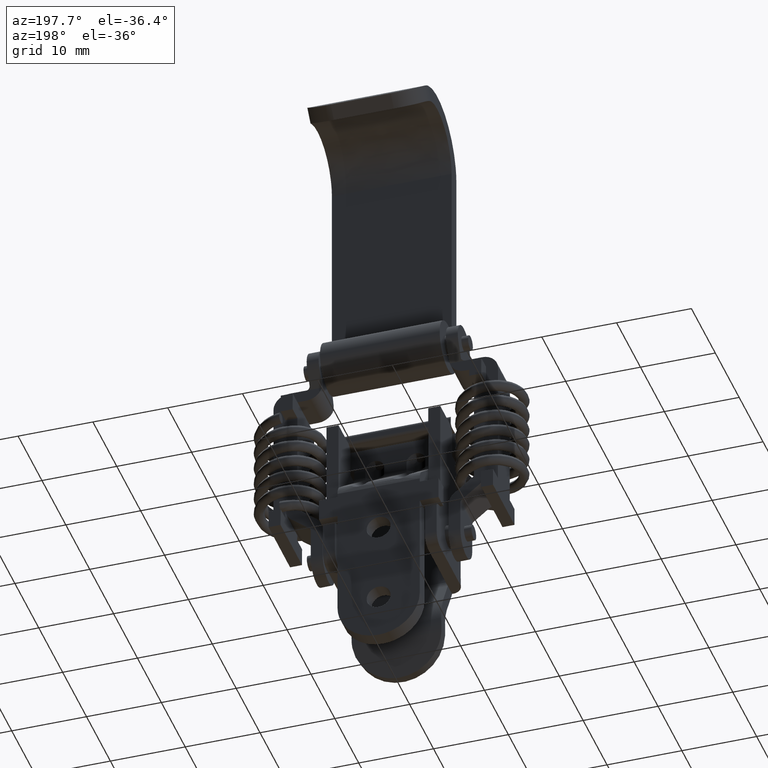
[diagram: clean part render]
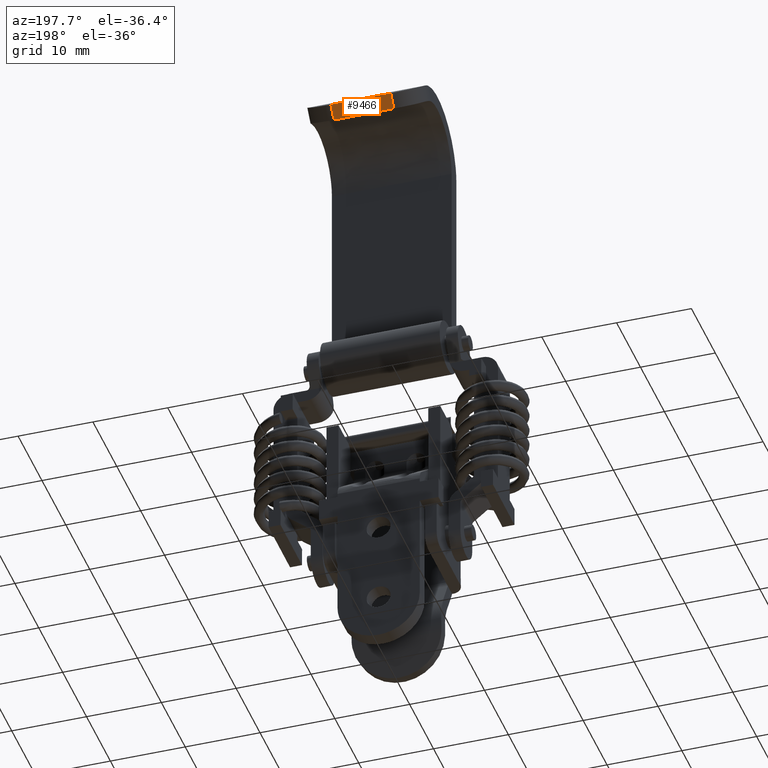
[diagram: same view with one face highlighted and labeled with its STEP entity id]
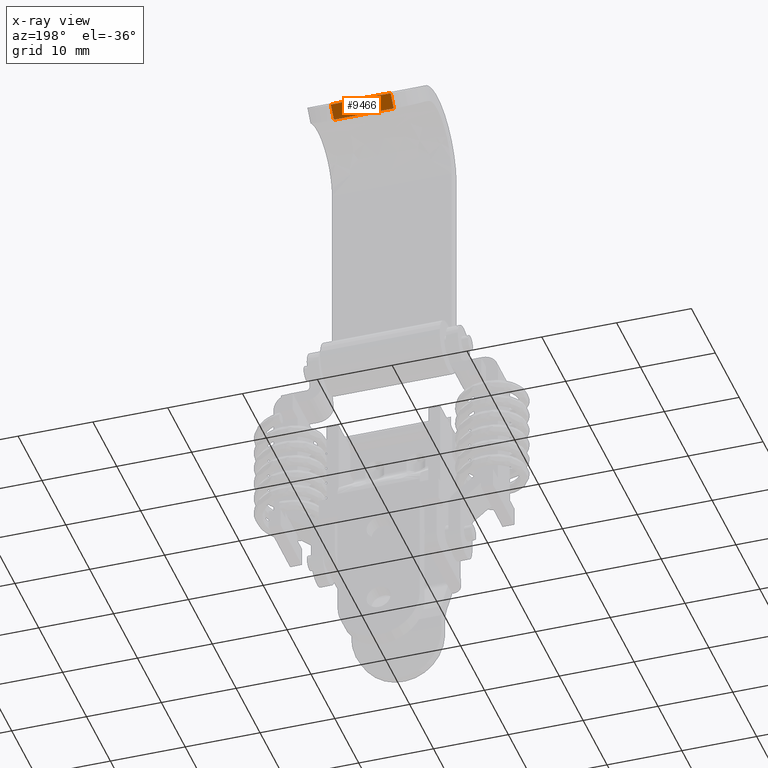
[diagram: x-ray of the same camera — body ghosted, the highlighted face saturated]
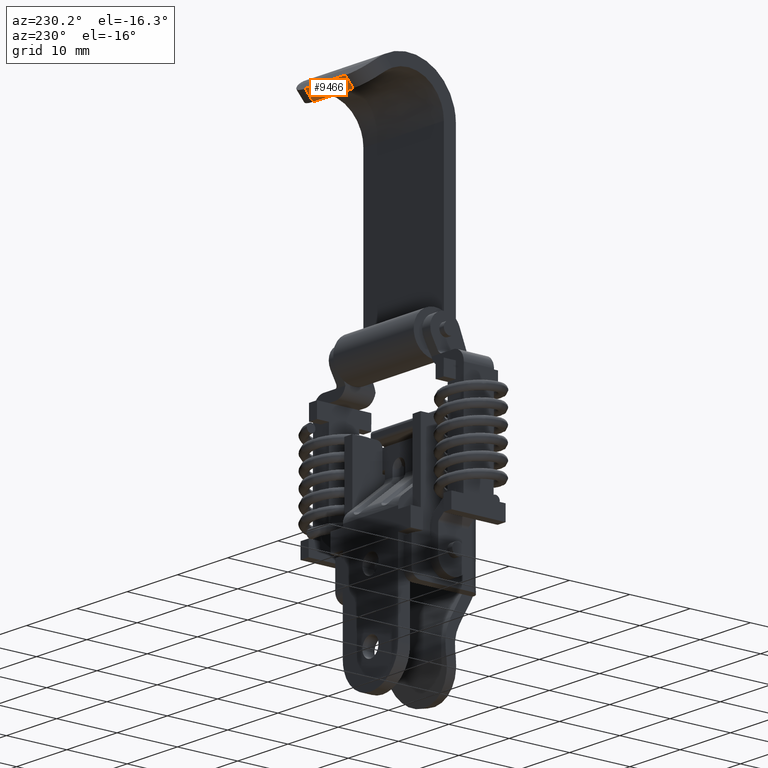
[diagram: same view with one face highlighted and labeled with its STEP entity id]
A machine part, auxiliary view. The second image highlights one B-rep face of the part: STEP entity #9466.
The next image is the same camera in x-ray: the body ghosted, the highlighted face saturated — about 0% of this face is hidden behind the body in this view.
A second angle (auxiliary view) of the same face is appended — the face is thin or edge-on in the first view.
In plain terms, the highlighted face is a freeform B-spline surface patch.
Its self-contained STEP definition (entity closure, byte-faithful):
#8728=CARTESIAN_POINT('',(4.0,9.184876649776241,31.499983558014510));
#8729=VERTEX_POINT('',#8728);
#8743=CARTESIAN_POINT('',(4.0,10.499992078449541,33.006796923763808));
#8744=VERTEX_POINT('',#8743);
#8745=CARTESIAN_POINT('',(4.0,10.499992078449541,33.006796923763808));
#8746=CARTESIAN_POINT('',(4.0,9.184876649776241,31.499983558014510));
#8747=QUASI_UNIFORM_CURVE('',1,(#8745,#8746),.UNSPECIFIED.,.F.,.U.);
#8748=EDGE_CURVE('',#8744,#8729,#8747,.T.);
#8780=CARTESIAN_POINT('',(-4.0,10.499992078449541,33.006796923763808));
#8781=VERTEX_POINT('',#8780);
#8797=CARTESIAN_POINT('',(-4.0,9.184876649776241,31.499983558014510));
#8798=VERTEX_POINT('',#8797);
#8799=CARTESIAN_POINT('',(-4.0,9.184876649776241,31.499983558014510));
#8800=CARTESIAN_POINT('',(-4.0,10.499992078449541,33.006796923763808));
#8801=QUASI_UNIFORM_CURVE('',1,(#8799,#8800),.UNSPECIFIED.,.F.,.U.);
#8802=EDGE_CURVE('',#8798,#8781,#8801,.T.);
#9248=CARTESIAN_POINT('',(-4.0,10.499992078449541,33.006796923763808));
#9249=CARTESIAN_POINT('',(4.0,10.499992078449541,33.006796923763808));
#9250=QUASI_UNIFORM_CURVE('',1,(#9248,#9249),.UNSPECIFIED.,.F.,.U.);
#9251=EDGE_CURVE('',#8781,#8744,#9250,.T.);
#9446=CARTESIAN_POINT('',(-4.0,9.184876649776241,31.499983558014510));
#9447=CARTESIAN_POINT('',(4.0,9.184876649776241,31.499983558014510));
#9448=QUASI_UNIFORM_CURVE('',1,(#9446,#9447),.UNSPECIFIED.,.F.,.U.);
#9449=EDGE_CURVE('',#8798,#8729,#9448,.T.);
#9455=CARTESIAN_POINT('',(-4.399599984494449,10.565682091562829,33.082062248462492));
#9456=CARTESIAN_POINT('',(-4.399599984494449,9.119186601388829,31.424718192899920));
#9457=CARTESIAN_POINT('',(4.399600199071170,10.565682091562829,33.082062248462492));
#9458=CARTESIAN_POINT('',(4.399600199071170,9.119186601388829,31.424718192899920));
#9459=B_SPLINE_SURFACE_WITH_KNOTS('',1,1,((#9455,#9457),(#9456,#9458)),.UNSPECIFIED.,.F.,.F.,.U.,(2,2),(2,2),(0.0,2.199804200742026),(0.0,8.799200183565619),.UNSPECIFIED.);
#9460=ORIENTED_EDGE('',*,*,#9449,.F.);
#9461=ORIENTED_EDGE('',*,*,#8802,.T.);
#9462=ORIENTED_EDGE('',*,*,#9251,.T.);
#9463=ORIENTED_EDGE('',*,*,#8748,.T.);
#9464=EDGE_LOOP('',(#9460,#9461,#9462,#9463));
#9465=FACE_OUTER_BOUND('',#9464,.T.);
#9466=ADVANCED_FACE('',(#9465),#9459,.F.);